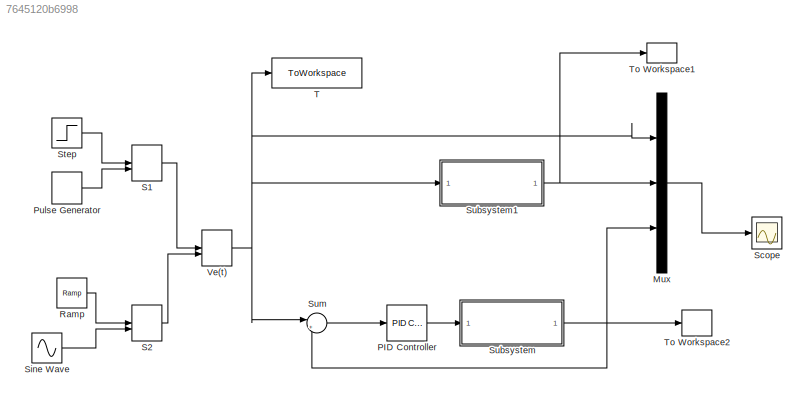
MODEL slx_7645120b6998
KIND model
CONFIG AbsTol = auto
CONFIG EnableMultiTasking = off
CONFIG FixedStep = auto
CONFIG MaxStep = 1e-3
CONFIG MinStep = auto
CONFIG RelTol = 1e-3
CONFIG SampleTimeConstraint = Unconstrained
CONFIG SolverName = ode45
CONFIG StartTime = 0.0
CONFIG StopTime = 10.0
BLOCK [Mux] Mux
  DisplayOption = bar
  Inputs = 3
BLOCK [Reference] PID Controller  REF=slpidlib/PID Controller
  LibrarySourceBlock = simulink/Continuous/PID Controller
  SourceBlock = slpidlib/PID Controller
  SourceType = PID 1dof
BLOCK [DiscretePulseGenerator] Pulse Generator
  Period = 10
  PhaseDelay = 1
  PulseType = Time based
  PulseWidth = 10
BLOCK [Reference] Ramp  REF=simulink/Sources/Ramp
  SourceBlock = simulink/Sources/Ramp
  SourceType = Ramp
BLOCK [ManualSwitch] S1
  CurrentSetting = 0
BLOCK [ManualSwitch] S2
  CurrentSetting = 0
BLOCK [Scope] Scope
  Floating = off
  NumInputPorts = 1
  ScopeSpecificationString = Simulink.scopes.TimeScopeBlockCfg('CurrentConfiguration', extmgr.ConfigurationSet(extmgr.Configuration('Core','General UI',true),extmgr.Configuration('Core','Source UI',true),extmgr.Configuration('Sources','WiredSimulink',true),extmgr.Configuration('Visuals','Time Domain',true,'SerializedDisplays',{struct('MinYLimReal','-2.00000','MaxYLimReal','2.00000','YLabelReal','','MinYLimMag','0.00000','MaxY...<+1514ch>
BLOCK [Sin] Sine Wave
  Frequency = 1.5708
  SampleTime = 0.001
BLOCK [Step] Step
  Time = 0
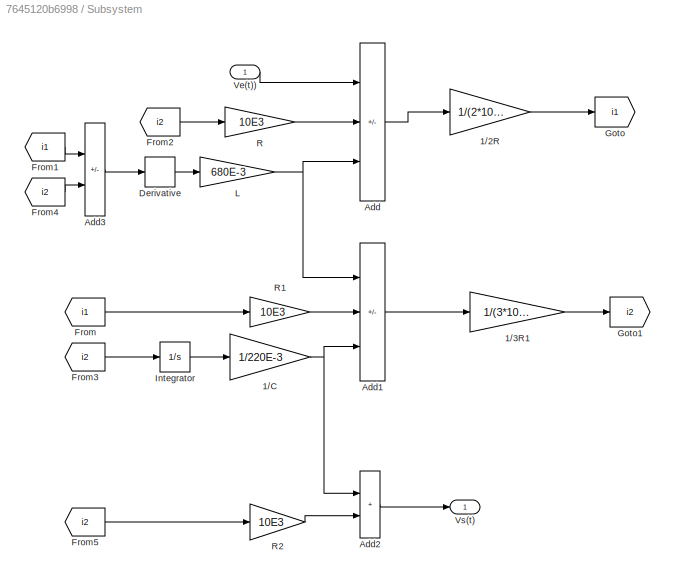
BLOCK [SubSystem] Subsystem
BLOCK [Gain] Subsystem/1//2R
  Gain = 1/(2*10E3)
BLOCK [Gain] Subsystem/1//3R1
  Gain = 1/(3*10E3)
BLOCK [Gain] Subsystem/1//C
  Gain = 1/220E-3
BLOCK [Sum] Subsystem/Add
  IconShape = rectangular
  Inputs = ++-
BLOCK [Sum] Subsystem/Add1
  IconShape = rectangular
  Inputs = ++-
BLOCK [Sum] Subsystem/Add2
  IconShape = rectangular
BLOCK [Sum] Subsystem/Add3
  IconShape = rectangular
  Inputs = +-
BLOCK [Derivative] Subsystem/Derivative
BLOCK [From] Subsystem/From
  GotoTag = i1
BLOCK [From] Subsystem/From1
  GotoTag = i1
BLOCK [From] Subsystem/From2
  GotoTag = i2
BLOCK [From] Subsystem/From3
  GotoTag = i2
BLOCK [From] Subsystem/From4
  GotoTag = i2
BLOCK [From] Subsystem/From5
  GotoTag = i2
BLOCK [Goto] Subsystem/Goto
  GotoTag = i1
BLOCK [Goto] Subsystem/Goto1
  GotoTag = i2
BLOCK [Integrator] Subsystem/Integrator
BLOCK [Gain] Subsystem/L
  Gain = 680E-3
BLOCK [Gain] Subsystem/R
  Gain = 10E3
BLOCK [Gain] Subsystem/R1
  Gain = 10E3
BLOCK [Gain] Subsystem/R2
  Gain = 10E3
BLOCK [Inport] Subsystem/Ve(t))
BLOCK [Outport] Subsystem/Vs(t)
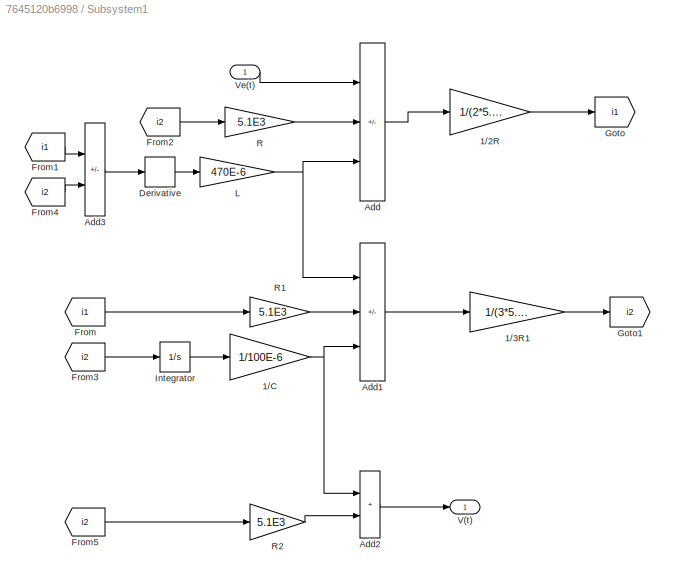
BLOCK [SubSystem] Subsystem1
BLOCK [Gain] Subsystem1/1//2R
  Gain = 1/(2*5.1E3)
BLOCK [Gain] Subsystem1/1//3R1
  Gain = 1/(3*5.1E3)
BLOCK [Gain] Subsystem1/1//C
  Gain = 1/100E-6
BLOCK [Sum] Subsystem1/Add
  IconShape = rectangular
  Inputs = ++-
BLOCK [Sum] Subsystem1/Add1
  IconShape = rectangular
  Inputs = ++-
BLOCK [Sum] Subsystem1/Add2
  IconShape = rectangular
BLOCK [Sum] Subsystem1/Add3
  IconShape = rectangular
  Inputs = +-
BLOCK [Derivative] Subsystem1/Derivative
BLOCK [From] Subsystem1/From
  GotoTag = i1
BLOCK [From] Subsystem1/From1
  GotoTag = i1
BLOCK [From] Subsystem1/From2
  GotoTag = i2
BLOCK [From] Subsystem1/From3
  GotoTag = i2
BLOCK [From] Subsystem1/From4
  GotoTag = i2
BLOCK [From] Subsystem1/From5
  GotoTag = i2
BLOCK [Goto] Subsystem1/Goto
  GotoTag = i1
BLOCK [Goto] Subsystem1/Goto1
  GotoTag = i2
BLOCK [Integrator] Subsystem1/Integrator
BLOCK [Gain] Subsystem1/L
  Gain = 470E-6
BLOCK [Gain] Subsystem1/R
  Gain = 5.1E3
BLOCK [Gain] Subsystem1/R1
  Gain = 5.1E3
BLOCK [Gain] Subsystem1/R2
  Gain = 5.1E3
BLOCK [Outport] Subsystem1/V(t)
BLOCK [Inport] Subsystem1/Ve(t)
BLOCK [Sum] Sum
  Inputs = |+-
BLOCK [ToWorkspace] T 
  FixptAsFi = on
  MaxDataPoints = inf
  SampleTime = -1
  VariableName = Ve
BLOCK [ToWorkspace] To Workspace1
  FixptAsFi = on
  MaxDataPoints = inf
  SampleTime = -1
  VariableName = Vs
BLOCK [ToWorkspace] To Workspace2
  FixptAsFi = on
  MaxDataPoints = inf
  SampleTime = -1
  VariableName = VPID
BLOCK [ManualSwitch] Ve(t)
  CurrentSetting = 0
LINE Mux:1 -> Scope:1
LINE PID Controller:1 -> Subsystem:1
LINE Pulse Generator:1 -> S1:2
LINE Ramp:1 -> S2:1
LINE S1:1 -> Ve(t):1
LINE S2:1 -> Ve(t):2
LINE Sine Wave:1 -> S2:2
LINE Step:1 -> S1:1
LINE Subsystem/1//2R:1 -> Subsystem/Goto:1
LINE Subsystem/1//3R1:1 -> Subsystem/Goto1:1
NET Subsystem/1//C:1 -> Subsystem/Add1:3, Subsystem/Add2:1
LINE Subsystem/Add1:1 -> Subsystem/1//3R1:1
LINE Subsystem/Add2:1 -> Subsystem/Vs(t):1
LINE Subsystem/Add3:1 -> Subsystem/Derivative:1
LINE Subsystem/Add:1 -> Subsystem/1//2R:1
LINE Subsystem/Derivative:1 -> Subsystem/L:1
LINE Subsystem/From1:1 -> Subsystem/Add3:1
LINE Subsystem/From2:1 -> Subsystem/R:1
LINE Subsystem/From3:1 -> Subsystem/Integrator:1
LINE Subsystem/From4:1 -> Subsystem/Add3:2
LINE Subsystem/From5:1 -> Subsystem/R2:1
LINE Subsystem/From:1 -> Subsystem/R1:1
LINE Subsystem/Integrator:1 -> Subsystem/1//C:1
NET Subsystem/L:1 -> Subsystem/Add1:1, Subsystem/Add:3
LINE Subsystem/R1:1 -> Subsystem/Add1:2
LINE Subsystem/R2:1 -> Subsystem/Add2:2
LINE Subsystem/R:1 -> Subsystem/Add:2
LINE Subsystem/Ve(t)):1 -> Subsystem/Add:1
LINE Subsystem1/1//2R:1 -> Subsystem1/Goto:1
LINE Subsystem1/1//3R1:1 -> Subsystem1/Goto1:1
NET Subsystem1/1//C:1 -> Subsystem1/Add1:3, Subsystem1/Add2:1
LINE Subsystem1/Add1:1 -> Subsystem1/1//3R1:1
LINE Subsystem1/Add2:1 -> Subsystem1/V(t):1
LINE Subsystem1/Add3:1 -> Subsystem1/Derivative:1
LINE Subsystem1/Add:1 -> Subsystem1/1//2R:1
LINE Subsystem1/Derivative:1 -> Subsystem1/L:1
LINE Subsystem1/From1:1 -> Subsystem1/Add3:1
LINE Subsystem1/From2:1 -> Subsystem1/R:1
LINE Subsystem1/From3:1 -> Subsystem1/Integrator:1
LINE Subsystem1/From4:1 -> Subsystem1/Add3:2
LINE Subsystem1/From5:1 -> Subsystem1/R2:1
LINE Subsystem1/From:1 -> Subsystem1/R1:1
LINE Subsystem1/Integrator:1 -> Subsystem1/1//C:1
NET Subsystem1/L:1 -> Subsystem1/Add1:1, Subsystem1/Add:3
LINE Subsystem1/R1:1 -> Subsystem1/Add1:2
LINE Subsystem1/R2:1 -> Subsystem1/Add2:2
LINE Subsystem1/R:1 -> Subsystem1/Add:2
LINE Subsystem1/Ve(t):1 -> Subsystem1/Add:1
NET Subsystem1:1 -> Mux:2, To Workspace1:1
NET Subsystem:1 -> Mux:3, Sum:2, To Workspace2:1
LINE Sum:1 -> PID Controller:1
NET Ve(t):1 -> Mux:1, Subsystem1:1, Sum:1, T :1
note: NET lines group one-source signal fan-out (src -> all destinations, sorted); 1:1 wires keep LINE
